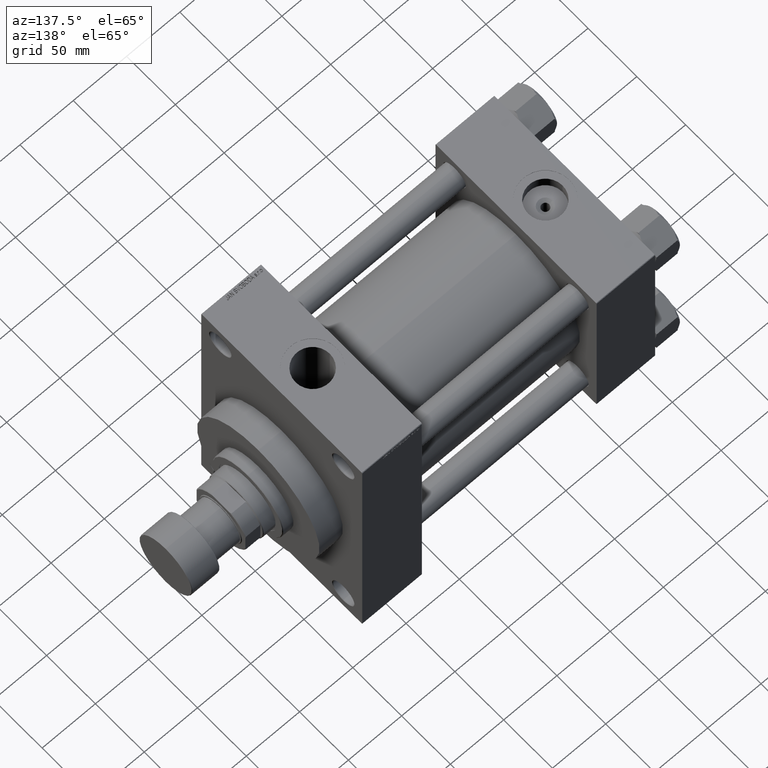
[diagram: clean part render]
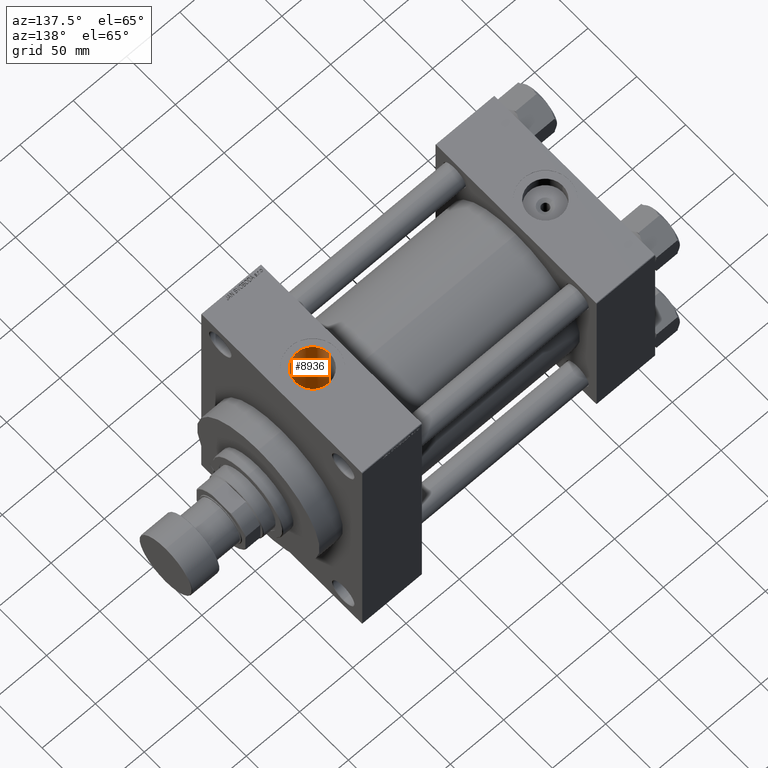
[diagram: same view with one face highlighted and labeled with its STEP entity id]
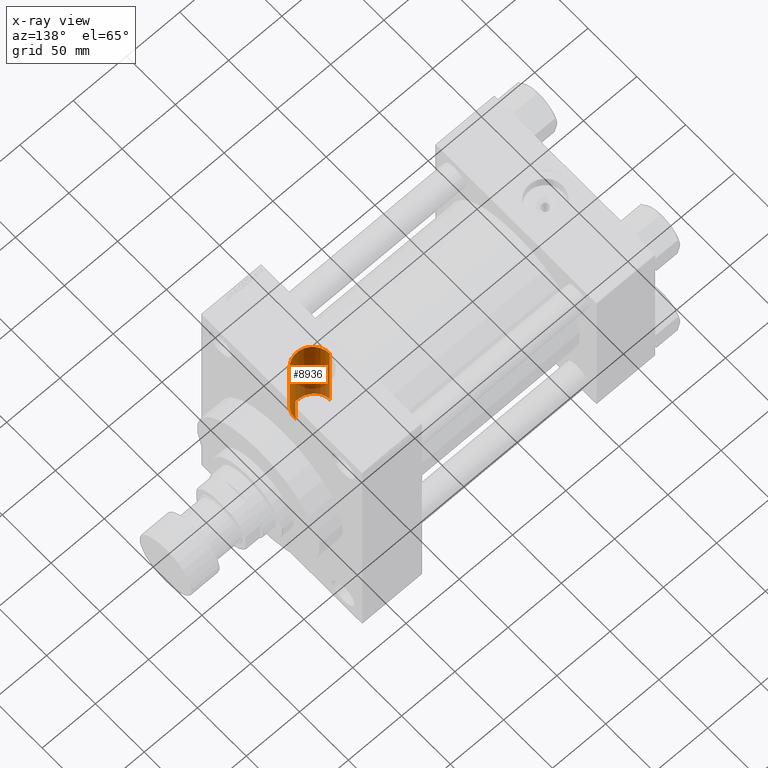
[diagram: x-ray of the same camera — body ghosted, the highlighted face saturated]
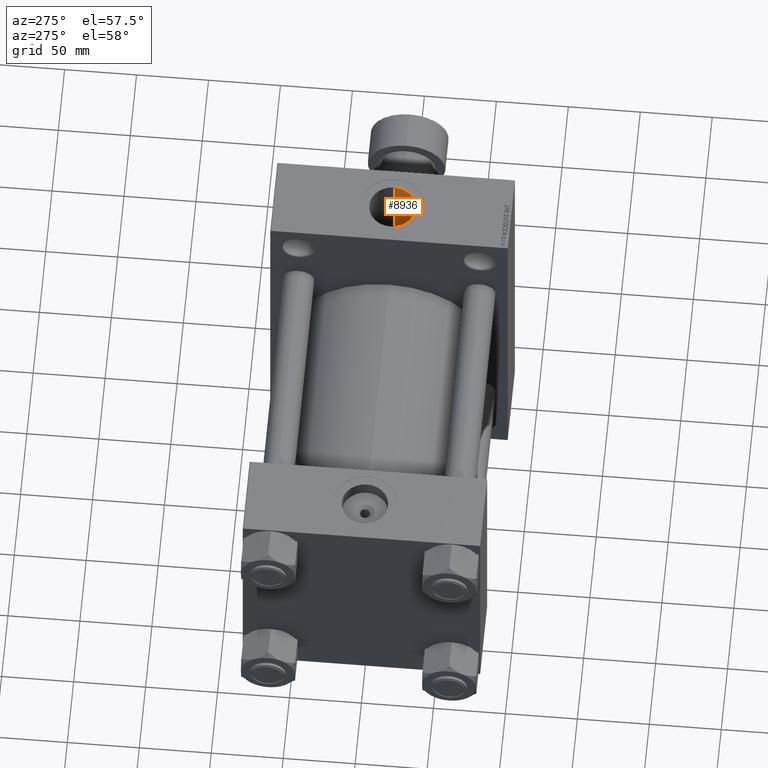
[diagram: same view with one face highlighted and labeled with its STEP entity id]
A machine part, auxiliary view. The second image highlights one B-rep face of the part: STEP entity #8936.
The next image is the same camera in x-ray: the body ghosted, the highlighted face saturated — about 16% of this face is hidden behind the body in this view.
A second angle (auxiliary view) of the same face is appended — the face is thin or edge-on in the first view.
In plain terms, the highlighted cylindrical surface (edge-blend (fillet) strip) has radius 16.12 mm, axis along (0, 0, -1).
Its self-contained STEP definition (entity closure, byte-faithful):
#1902 = CARTESIAN_POINT ( 'NONE',  ( 242.9228835794722841, -15.83909022528228938, 45.31153598099022872 ) ) ;
#1988 = CARTESIAN_POINT ( 'NONE',  ( 262.1200000000001182, 1.233548949657948224E-14, 62.75000000000001421 ) ) ;
#2139 = CARTESIAN_POINT ( 'NONE',  ( 235.5016505005564227, -12.25223426699440665, 46.41205426771292508 ) ) ;
#2218 = FACE_OUTER_BOUND ( 'NONE', #30930, .T. ) ;
#3036 = CARTESIAN_POINT ( 'NONE',  ( 229.8799999999999386, -1.038731390463688304E-14, 146.2999999999999829 ) ) ;
#3290 = CARTESIAN_POINT ( 'NONE',  ( 252.5268965211031116, -14.80427523608114093, 45.66526315275407200 ) ) ;
#3531 = CARTESIAN_POINT ( 'NONE',  ( 251.2382520628492273, -15.31019963486745361, 45.49424055631331498 ) ) ;
#3685 = CARTESIAN_POINT ( 'NONE',  ( 262.1200000000001182, 1.233548949657948224E-14, 62.75000000000001421 ) ) ;
#3897 = VERTEX_POINT ( 'NONE', #3685 ) ;
#4009 = CARTESIAN_POINT ( 'NONE',  ( 230.2558561993274964, -3.478434657325287116, 47.87504062993428988 ) ) ;
#5405 = CARTESIAN_POINT ( 'NONE',  ( 253.7400000000000091, -14.14025459459628031, 61.13604256083312549 ) ) ;
#5561 = CARTESIAN_POINT ( 'NONE',  ( 232.6971890334756381, -9.210764258183596453, 47.12401255044402859 ) ) ;
#6581 = DIRECTION ( 'NONE',  ( 1.000000000000000000, 0.000000000000000000, 0.000000000000000000 ) ) ;
#7171 = DIRECTION ( 'NONE',  ( 0.000000000000000000, 0.000000000000000000, -1.000000000000000000 ) ) ;
#7422 = CARTESIAN_POINT ( 'NONE',  ( 229.8799999999999386, 5.879090918007074346E-15, 48.00000000000000711 ) ) ;
#7895 = CARTESIAN_POINT ( 'NONE',  ( 229.8799999999999386, -0.6969441322252704074, 48.00000000000000711 ) ) ;
#8372 = B_SPLINE_CURVE_WITH_KNOTS ( 'NONE', 3,
 ( #1988, #46307, #12236, #38762, #23438, #38527, #27080, #12714, #20505, #8810, #9292, #46537, #27565, #23197, #46066, #5405 ),
 .UNSPECIFIED., .F., .F.,
 ( 4, 2, 2, 2, 2, 2, 2, 4 ),
 ( 0.01725131248101629058, 0.02156005667283704408, 0.02371442876874739480, 0.02586880086465775247, 0.02802317296056811013, 0.03017754505647846780, 0.03233191715238882546, 0.03448628924829918313 ),
 .UNSPECIFIED. ) ;
#8810 = CARTESIAN_POINT ( 'NONE',  ( 258.1966697685149370, -10.56451674639083294, 61.85691085472824113 ) ) ;
#8936 = ADVANCED_FACE ( 'NONE', ( #2218 ), #45823, .F. ) ;
#9292 = CARTESIAN_POINT ( 'NONE',  ( 257.7179939142466196, -11.09284231136828325, 61.76378836952424933 ) ) ;
#9451 = CARTESIAN_POINT ( 'NONE',  ( 231.8313680696430197, -7.695846547749231270, 47.38004186343273005 ) ) ;
#10036 = VECTOR ( 'NONE', #45551, 1000.000000000000000 ) ;
#10556 = EDGE_CURVE ( 'NONE', #17263, #3897, #11238, .T. ) ;
#11087 = CARTESIAN_POINT ( 'NONE',  ( 247.1172731320740468, -16.14205161217262940, 45.20436757325734334 ) ) ;
#11238 = LINE ( 'NONE', #19271, #29298 ) ;
#12236 = CARTESIAN_POINT ( 'NONE',  ( 261.9288187961557242, -2.869591190657385216, 62.70005304133125179 ) ) ;
#12253 = EDGE_CURVE ( 'NONE', #21168, #31320, #29576, .T. ) ;
#12473 = DIRECTION ( 'NONE',  ( -1.000000000000000000, 0.000000000000000000, 0.000000000000000000 ) ) ;
#12714 = CARTESIAN_POINT ( 'NONE',  ( 259.4978733992990101, -8.841743442041547496, 62.12707439263353137 ) ) ;
#13348 = CARTESIAN_POINT ( 'NONE',  ( 230.6039488246599944, -4.827023044815300423, 47.76144096132668437 ) ) ;
#14037 = CARTESIAN_POINT ( 'NONE',  ( 253.7400000000000091, -14.14025459459628031, 61.13604256083312549 ) ) ;
#14499 = CARTESIAN_POINT ( 'NONE',  ( 240.9058140718718732, -15.30969356532288828, 45.49344936859773725 ) ) ;
#14734 = CARTESIAN_POINT ( 'NONE',  ( 234.9799852017249862, -11.78519132341144271, 46.53349822920895917 ) ) ;
#15053 = CARTESIAN_POINT ( 'NONE',  ( 262.1200000000000045, -8.413183264411341910E-15, 123.2999999999999829 ) ) ;
#15374 = LINE ( 'NONE', #19756, #10036 ) ;
#15932 = EDGE_CURVE ( 'NONE', #3897, #45937, #8372, .T. ) ;
#17003 = CARTESIAN_POINT ( 'NONE',  ( 231.6675240934841895, -7.386171131807198087, 47.42936155241066132 ) ) ;
#17263 = VERTEX_POINT ( 'NONE', #15053 ) ;
#18392 = CARTESIAN_POINT ( 'NONE',  ( 238.3439918909933795, -14.20269203266187574, 45.85214996005702659 ) ) ;
#18874 = EDGE_CURVE ( 'NONE', #41516, #45937, #15374, .T. ) ;
#19271 = CARTESIAN_POINT ( 'NONE',  ( 262.1200000000000045, -8.413183264411345065E-15, 146.2999999999999829 ) ) ;
#19756 = CARTESIAN_POINT ( 'NONE',  ( 253.7400000000000091, -14.14025459459628031, 146.2999999999999829 ) ) ;
#19791 = DIRECTION ( 'NONE',  ( 0.000000000000000000, 0.000000000000000000, -1.000000000000000000 ) ) ;
#20066 = B_SPLINE_CURVE_WITH_KNOTS ( 'NONE', 3,
 ( #24554, #3290, #3531, #42808, #11087, #29105, #35506, #1902, #33000, #14499, #31615, #28197, #18392, #33241, #48076, #2139, #14734, #29585, #5561, #9451, #17003, #27957, #31850, #46694, #13348, #23011, #4009, #37370, #38089, #45390, #7895, #7422 ),
 .UNSPECIFIED., .F., .F.,
 ( 4, 2, 2, 2, 2, 2, 2, 2, 2, 2, 2, 2, 2, 2, 2, 4 ),
 ( 0.01730946740486653812, 0.02149205991460774109, 0.02567465242434886080, 0.02776594867921946749, 0.02985724493409006725, 0.03194854118896067047, 0.03403983744383126675, 0.03613113369870186997, 0.03822242995357247319, 0.04240502246331366576, 0.04345067059074898819, 0.04449631871818429674, 0.04658761497305496935, 0.04763326310049031259, 0.04867891122792564890, 0.05077020748279632151 ),
 .UNSPECIFIED. ) ;
#20505 = CARTESIAN_POINT ( 'NONE',  ( 259.0858583400533348, -9.440766866681631342, 62.03836196695987582 ) ) ;
#20693 = ORIENTED_EDGE ( 'NONE', *, *, #36044, .F. ) ;
#21168 = VERTEX_POINT ( 'NONE', #37187 ) ;
#23011 = CARTESIAN_POINT ( 'NONE',  ( 230.3349467463775682, -3.818578580884672835, 47.84905752641297738 ) ) ;
#23197 = CARTESIAN_POINT ( 'NONE',  ( 254.9837016728168066, -13.40408882547884595, 61.30322131436628297 ) ) ;
#23438 = CARTESIAN_POINT ( 'NONE',  ( 261.1137499233101948, -5.651720081446739208, 62.49847482008424038 ) ) ;
#24554 = CARTESIAN_POINT ( 'NONE',  ( 253.7400000000000091, -14.14025459459628209, 45.86995966861099561 ) ) ;
#24605 = AXIS2_PLACEMENT_3D ( 'NONE', #46303, #19791, #12473 ) ;
#25972 = CARTESIAN_POINT ( 'NONE',  ( 229.8799999999999386, 5.879090918007074346E-15, 48.00000000000000711 ) ) ;
#27080 = CARTESIAN_POINT ( 'NONE',  ( 260.2299047929869289, -7.607813285098417033, 62.29021573812202917 ) ) ;
#27565 = CARTESIAN_POINT ( 'NONE',  ( 256.1469099290165445, -12.54658168107655491, 61.48445192794333281 ) ) ;
#27957 = CARTESIAN_POINT ( 'NONE',  ( 231.3622568011777787, -6.761054920981783845, 47.52249990912831379 ) ) ;
#28197 = CARTESIAN_POINT ( 'NONE',  ( 238.9619646494108167, -14.51938006037330631, 45.75230194618005441 ) ) ;
#28391 = ORIENTED_EDGE ( 'NONE', *, *, #15932, .T. ) ;
#29105 = CARTESIAN_POINT ( 'NONE',  ( 245.0177403313186062, -16.10526306269811059, 45.21748191981000531 ) ) ;
#29298 = VECTOR ( 'NONE', #30935, 1000.000000000000000 ) ;
#29576 = LINE ( 'NONE', #3036, #36350 ) ;
#29585 = CARTESIAN_POINT ( 'NONE',  ( 233.5284591875428362, -10.30646944873277171, 46.89142198111668591 ) ) ;
#29886 = ORIENTED_EDGE ( 'NONE', *, *, #12253, .F. ) ;
#30930 = EDGE_LOOP ( 'NONE', ( #20693, #47434, #28391, #34137, #42938, #29886 ) ) ;
#30935 = DIRECTION ( 'NONE',  ( 0.000000000000000000, 0.000000000000000000, -1.000000000000000000 ) ) ;
#31320 = VERTEX_POINT ( 'NONE', #25972 ) ;
#31615 = CARTESIAN_POINT ( 'NONE',  ( 240.2496555027516365, -15.07580435985672906, 45.57198320915297529 ) ) ;
#31850 = CARTESIAN_POINT ( 'NONE',  ( 231.2202184905599154, -6.444565633109876401, 47.56650002770067687 ) ) ;
#33000 = CARTESIAN_POINT ( 'NONE',  ( 242.2424279243941783, -15.69133835691061485, 45.36322908574959456 ) ) ;
#33241 = CARTESIAN_POINT ( 'NONE',  ( 237.1578453829134503, -13.49619290271694538, 46.06505067908694429 ) ) ;
#33794 = CIRCLE ( 'NONE', #37687, 16.12000000000002231 ) ;
#34137 = ORIENTED_EDGE ( 'NONE', *, *, #18874, .F. ) ;
#34629 = EDGE_CURVE ( 'NONE', #41516, #31320, #20066, .T. ) ;
#35506 = CARTESIAN_POINT ( 'NONE',  ( 244.3089344729780805, -16.04636164410586829, 45.23854938111715285 ) ) ;
#35781 = CARTESIAN_POINT ( 'NONE',  ( 253.7400000000000091, -14.14025459459628209, 45.86995966861099561 ) ) ;
#36044 = EDGE_CURVE ( 'NONE', #17263, #21168, #33794, .T. ) ;
#36350 = VECTOR ( 'NONE', #7171, 1000.000000000000000 ) ;
#37187 = CARTESIAN_POINT ( 'NONE',  ( 229.8799999999999386, -1.038731390463688304E-14, 123.2999999999999829 ) ) ;
#37370 = CARTESIAN_POINT ( 'NONE',  ( 230.1193842262599389, -2.789912960716224521, 47.92009399672300418 ) ) ;
#37687 = AXIS2_PLACEMENT_3D ( 'NONE', #43108, #46759, #6581 ) ;
#38089 = CARTESIAN_POINT ( 'NONE',  ( 230.0618984349624725, -2.440288002312383409, 47.93919931072274210 ) ) ;
#38527 = CARTESIAN_POINT ( 'NONE',  ( 260.5529646384134139, -6.969834779711528761, 62.36523629281987979 ) ) ;
#38762 = CARTESIAN_POINT ( 'NONE',  ( 261.3520876524983692, -4.969372210910916188, 62.55685426934637405 ) ) ;
#41516 = VERTEX_POINT ( 'NONE', #35781 ) ;
#42808 = CARTESIAN_POINT ( 'NONE',  ( 248.5014073238730532, -15.98700906778730690, 45.26084044427019393 ) ) ;
#42938 = ORIENTED_EDGE ( 'NONE', *, *, #34629, .T. ) ;
#43108 = CARTESIAN_POINT ( 'NONE',  ( 246.0000000000000000, -1.038731390463688304E-14, 123.2999999999999829 ) ) ;
#45390 = CARTESIAN_POINT ( 'NONE',  ( 229.9250024996749175, -1.394131805555123504, 47.98482823620873461 ) ) ;
#45551 = DIRECTION ( 'NONE',  ( -0.000000000000000000, -0.000000000000000000, 1.000000000000000000 ) ) ;
#45823 = CYLINDRICAL_SURFACE ( 'NONE', #24605, 16.12000000000005073 ) ;
#45937 = VERTEX_POINT ( 'NONE', #14037 ) ;
#46066 = CARTESIAN_POINT ( 'NONE',  ( 254.3751098904970434, -13.79261230007032424, 61.21644931185163330 ) ) ;
#46303 = CARTESIAN_POINT ( 'NONE',  ( 246.0000000000000000, -1.038731390463688304E-14, 146.2999999999999829 ) ) ;
#46307 = CARTESIAN_POINT ( 'NONE',  ( 262.1199999999999477, -1.446404479253764697, 62.74999999999998579 ) ) ;
#46537 = CARTESIAN_POINT ( 'NONE',  ( 256.6931090995300906, -12.08387147005238837, 61.57756697528339629 ) ) ;
#46694 = CARTESIAN_POINT ( 'NONE',  ( 230.8254561955875488, -5.483383170357745584, 47.69014482412353573 ) ) ;
#46759 = DIRECTION ( 'NONE',  ( -0.000000000000000000, -0.000000000000000000, -1.000000000000000000 ) ) ;
#47434 = ORIENTED_EDGE ( 'NONE', *, *, #10556, .T. ) ;
#48076 = CARTESIAN_POINT ( 'NONE',  ( 236.5894716896487751, -13.10627878788852918, 46.17814940225066067 ) ) ;